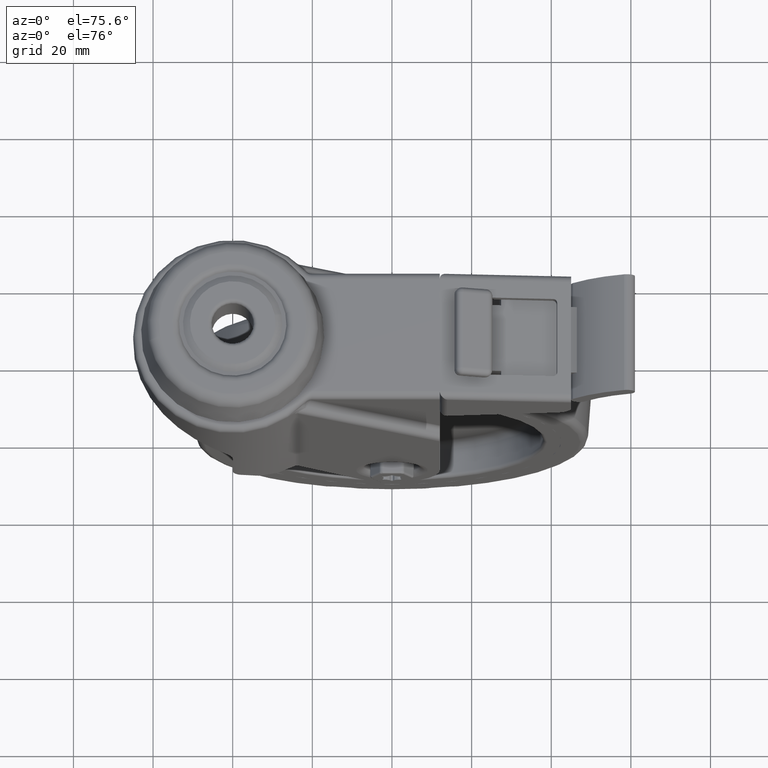
[diagram: clean part render]
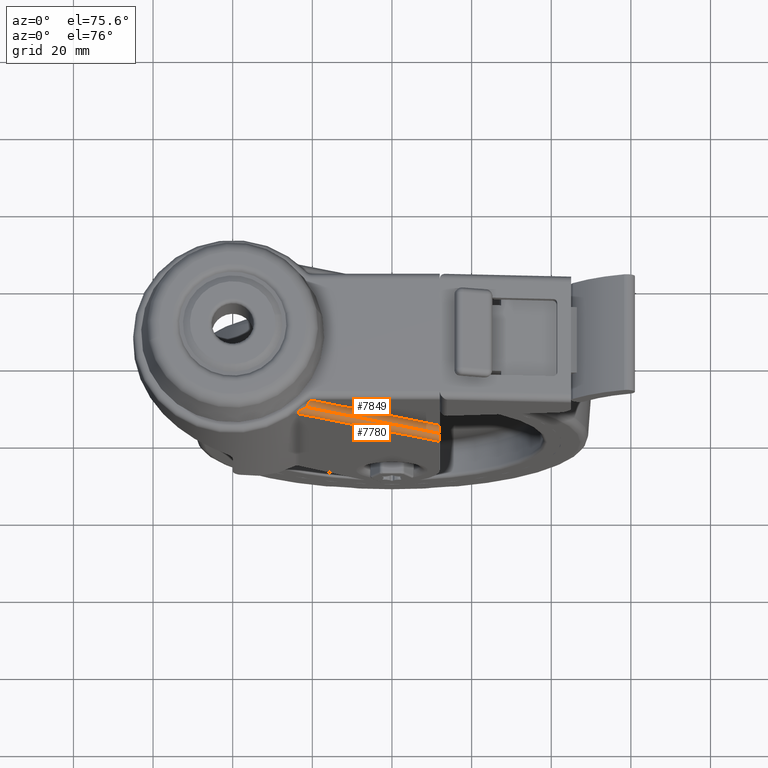
[diagram: same view with one multi-face feature highlighted, each face labeled with its STEP entity id]
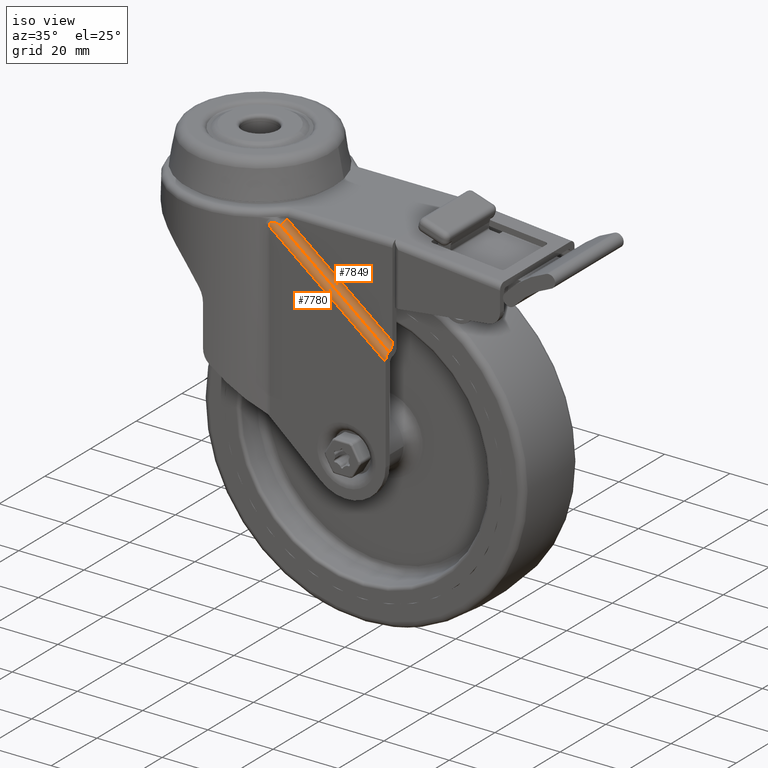
[diagram: same view with one multi-face feature highlighted, each face labeled with its STEP entity id]
A machine part, auxiliary view. The highlighted faces form ONE feature: a constant-radius fillet chain: 2 tangent blend faces with common blend radius 1.8 mm. The faces share edges in the B-rep.
A second angle (iso view) of the same feature is appended — it is thin or edge-on in the first view.
Their STEP definitions:
[1] entity #7780 (Cylinder):
#131=ELLIPSE('',#8442,2.29037622019586,1.8);
#179=B_SPLINE_CURVE_WITH_KNOTS('',3,(#12128,#12129,#12130,#12131,#12132,
#12133,#12134,#12135,#12136,#12137,#12138,#12139,#12140,#12141,#12142,#12143,
#12144,#12145,#12146,#12147,#12148,#12149,#12150,#12151,#12152,#12153,#12154,
#12155,#12156,#12157,#12158,#12159,#12160,#12161,#12162,#12163,#12164,#12165,
#12166,#12167,#12168,#12169,#12170,#12171,#12172,#12173,#12174,#12175,#12176,
#12177,#12178,#12179),.UNSPECIFIED.,.F.,.F.,(4,3,3,3,3,3,3,3,3,3,3,3,3,
3,3,3,3,4),(-0.00583113758674064,-0.00554187504604392,-0.00500354524939247,
-0.00484432968744607,-0.00466717416060475,-0.00460510353004133,-0.00446342672707553,
-0.00435530620499345,-0.00433189175282388,-0.00414801051078701,-0.00412291330652239,
-0.00400516918217474,-0.00394629712000091,-0.00388742505782709,-0.00374545007607357,
-0.00328935966431523,-0.00291556879337032,-0.00281466674011114),
 .UNSPECIFIED.);
#180=B_SPLINE_CURVE_WITH_KNOTS('',3,(#12186,#12187,#12188,#12189,#12190,
#12191,#12192,#12193,#12194,#12195,#12196,#12197,#12198,#12199,#12200,#12201),
 .UNSPECIFIED.,.F.,.F.,(4,3,3,3,3,4),(-0.00281466674011114,-0.00254177792242541,
-0.00194371252891355,-0.00118334688208495,-0.000986807899294569,-3.00972819849414E-16),
 .UNSPECIFIED.);
#603=CYLINDRICAL_SURFACE('',#8441,1.8);
#880=FACE_OUTER_BOUND('',#1363,.T.);
#1363=EDGE_LOOP('',(#5770,#5771,#5772,#5773,#5774));
#1939=LINE('',#12181,#2509);
#1940=LINE('',#12185,#2510);
#2509=VECTOR('',#9714,999.999999999999);
#2510=VECTOR('',#9717,1.8);
#3497=VERTEX_POINT('',#12126);
#3498=VERTEX_POINT('',#12127);
#3499=VERTEX_POINT('',#12180);
#3500=VERTEX_POINT('',#12182);
#3501=VERTEX_POINT('',#12184);
#4335=EDGE_CURVE('',#3497,#3498,#179,.T.);
#4336=EDGE_CURVE('',#3497,#3499,#1939,.T.);
#4337=EDGE_CURVE('',#3499,#3500,#131,.T.);
#4338=EDGE_CURVE('',#3501,#3500,#1940,.T.);
#4339=EDGE_CURVE('',#3498,#3501,#180,.T.);
#5770=ORIENTED_EDGE('',*,*,#4335,.F.);
#5771=ORIENTED_EDGE('',*,*,#4336,.T.);
#5772=ORIENTED_EDGE('',*,*,#4337,.T.);
#5773=ORIENTED_EDGE('',*,*,#4338,.F.);
#5774=ORIENTED_EDGE('',*,*,#4339,.F.);
#7780=ADVANCED_FACE('',(#880),#603,.T.);
#8441=AXIS2_PLACEMENT_3D('',#12125,#9712,#9713);
#8442=AXIS2_PLACEMENT_3D('',#12183,#9715,#9716);
#9712=DIRECTION('center_axis',(0.785897087180759,-2.61429921992068E-16,
-0.618357314471818));
#9713=DIRECTION('ref_axis',(0.437244650259325,-0.707106781186547,0.55571315966027));
#9714=DIRECTION('',(0.785897087180759,-3.30055061524995E-16,-0.618357314471818));
#9715=DIRECTION('center_axis',(-1.,4.25699012509646E-16,2.61162664890206E-33));
#9716=DIRECTION('ref_axis',(6.30659472253386E-32,1.42011888211901E-16,1.));
#9717=DIRECTION('',(0.785897087180759,0.,-0.618357314471818));
#12125=CARTESIAN_POINT('Origin',(30.2339896012534,-17.5,-27.6645057258586));
#12126=CARTESIAN_POINT('',(16.5236194582176,-19.3,-16.8769512224118));
#12127=CARTESIAN_POINT('',(17.001004420076,-18.7727918285475,-15.6330253374561));
#12128=CARTESIAN_POINT('Ctrl Pts',(16.5236194582177,-19.3,-16.8769512224116));
#12129=CARTESIAN_POINT('Ctrl Pts',(16.500190869552,-19.3,-16.8103067833569));
#12130=CARTESIAN_POINT('Ctrl Pts',(16.4791450692778,-19.2988030318616,-16.7441476050975));
#12131=CARTESIAN_POINT('Ctrl Pts',(16.4610779301551,-19.2962065374206,-16.6791234059825));
#12132=CARTESIAN_POINT('Ctrl Pts',(16.4274542217184,-19.2913743516799,-16.558110627063));
#12133=CARTESIAN_POINT('Ctrl Pts',(16.4041983958209,-19.2817490925898,-16.4414003380796));
#12134=CARTESIAN_POINT('Ctrl Pts',(16.3947021635348,-19.2658940809423,-16.331771937397));
#12135=CARTESIAN_POINT('Ctrl Pts',(16.3918935730217,-19.2612048279884,-16.2993484164837));
#12136=CARTESIAN_POINT('Ctrl Pts',(16.3903052403653,-19.2559626584604,-16.2675542713455));
#12137=CARTESIAN_POINT('Ctrl Pts',(16.390013945486,-19.2501521285544,-16.2365657972667));
#12138=CARTESIAN_POINT('Ctrl Pts',(16.3896898283132,-19.2436868843652,-16.2020856284671));
#12139=CARTESIAN_POINT('Ctrl Pts',(16.3909759375143,-19.2365208086031,-16.1686155633857));
#12140=CARTESIAN_POINT('Ctrl Pts',(16.3939803356084,-19.2286116802382,-16.1363181732104));
#12141=CARTESIAN_POINT('Ctrl Pts',(16.3950329975687,-19.2258405299751,-16.1250020183634));
#12142=CARTESIAN_POINT('Ctrl Pts',(16.3962940172094,-19.2229806607423,-16.1138352122145));
#12143=CARTESIAN_POINT('Ctrl Pts',(16.3977674306432,-19.2200289554492,-16.1028172908354));
#12144=CARTESIAN_POINT('Ctrl Pts',(16.4011305107802,-19.2132916601224,-16.0776687807888));
#12145=CARTESIAN_POINT('Ctrl Pts',(16.4056042293326,-19.206078641199,-16.0533142825128));
#12146=CARTESIAN_POINT('Ctrl Pts',(16.4112137542269,-19.1983870625255,-16.0298505258563));
#12147=CARTESIAN_POINT('Ctrl Pts',(16.4154946579987,-19.1925172413239,-16.0119441815106));
#12148=CARTESIAN_POINT('Ctrl Pts',(16.4204366995377,-19.1863688031529,-15.9945560944499));
#12149=CARTESIAN_POINT('Ctrl Pts',(16.4260401989677,-19.1799457107608,-15.977723998495));
#12150=CARTESIAN_POINT('Ctrl Pts',(16.4272536861656,-19.1785547334819,-15.9740788597363));
#12151=CARTESIAN_POINT('Ctrl Pts',(16.4284982380482,-19.1771507978792,-15.9704595188811));
#12152=CARTESIAN_POINT('Ctrl Pts',(16.4297739714688,-19.1757337913866,-15.9668658971467));
#12153=CARTESIAN_POINT('Ctrl Pts',(16.4397927173354,-19.1646055825372,-15.9386440270323));
#12154=CARTESIAN_POINT('Ctrl Pts',(16.4517955268569,-19.1526599001327,-15.9121372351394));
#12155=CARTESIAN_POINT('Ctrl Pts',(16.46562883944,-19.1399734015918,-15.8873860674883));
#12156=CARTESIAN_POINT('Ctrl Pts',(16.4675168921185,-19.1382418729065,-15.8840078810923));
#12157=CARTESIAN_POINT('Ctrl Pts',(16.4694391047341,-19.1364965178003,-15.8806624430637));
#12158=CARTESIAN_POINT('Ctrl Pts',(16.4713951426482,-19.1347375073183,-15.8773498993087));
#12159=CARTESIAN_POINT('Ctrl Pts',(16.480571940548,-19.1264850682524,-15.8618090223376));
#12160=CARTESIAN_POINT('Ctrl Pts',(16.490491377757,-19.117933417601,-15.8469934538812));
#12161=CARTESIAN_POINT('Ctrl Pts',(16.501085373163,-19.1090936275943,-15.8328796989773));
#12162=CARTESIAN_POINT('Ctrl Pts',(16.506382370866,-19.104673732591,-15.8258228215253));
#12163=CARTESIAN_POINT('Ctrl Pts',(16.5118602196695,-19.1001814601747,-15.8189503059195));
#12164=CARTESIAN_POINT('Ctrl Pts',(16.5175272914053,-19.0956179467973,-15.8122729834945));
#12165=CARTESIAN_POINT('Ctrl Pts',(16.523194363141,-19.0910544334199,-15.8055956610695));
#12166=CARTESIAN_POINT('Ctrl Pts',(16.5290505771571,-19.0864197591768,-15.7991136573314));
#12167=CARTESIAN_POINT('Ctrl Pts',(16.535089173457,-19.0817146848292,-15.7928256503856));
#12168=CARTESIAN_POINT('Ctrl Pts',(16.5496517616837,-19.0703679981331,-15.7776615871876));
#12169=CARTESIAN_POINT('Ctrl Pts',(16.565186914146,-19.0586473825086,-15.763640046727));
#12170=CARTESIAN_POINT('Ctrl Pts',(16.5816240247726,-19.0465961086695,-15.7508195700967));
#12171=CARTESIAN_POINT('Ctrl Pts',(16.6344277544242,-19.0078817494241,-15.7096341697325));
#12172=CARTESIAN_POINT('Ctrl Pts',(16.6969764195709,-18.9653067133344,-15.6798593293126));
#12173=CARTESIAN_POINT('Ctrl Pts',(16.7663945882641,-18.9201482942478,-15.6606948079225));
#12174=CARTESIAN_POINT('Ctrl Pts',(16.8232865488628,-18.8831385164369,-15.6449884414719));
#12175=CARTESIAN_POINT('Ctrl Pts',(16.8844497505521,-18.8446012348617,-15.6364122437495));
#12176=CARTESIAN_POINT('Ctrl Pts',(16.9484762744624,-18.8050647789556,-15.6338286021489));
#12177=CARTESIAN_POINT('Ctrl Pts',(16.9657597562908,-18.7943922080353,-15.6331311673996));
#12178=CARTESIAN_POINT('Ctrl Pts',(16.9832765280451,-18.7836316804859,-15.6328694858292));
#12179=CARTESIAN_POINT('Ctrl Pts',(17.001004420076,-18.7727918285475,-15.6330253374561));
#12180=CARTESIAN_POINT('',(52.,-19.3,-44.7903762201959));
#12181=CARTESIAN_POINT('',(30.2339896012534,-19.3,-27.6645057258586));
#12182=CARTESIAN_POINT('',(52.,-17.8,-42.5320348115304));
#12183=CARTESIAN_POINT('Origin',(52.,-17.5,-44.7903762201959));
#12184=CARTESIAN_POINT('',(18.6668865046921,-17.7999999999995,-16.3049691051497));
#12185=CARTESIAN_POINT('',(31.331464963317,-17.8,-26.2696767651385));
#12186=CARTESIAN_POINT('Ctrl Pts',(17.001004420076,-18.7727918285475,-15.6330253374561));
#12187=CARTESIAN_POINT('Ctrl Pts',(17.0489493660918,-18.74347553335,-15.6334468369679));
#12188=CARTESIAN_POINT('Ctrl Pts',(17.0984385045344,-18.7135790375066,-15.6369222904216));
#12189=CARTESIAN_POINT('Ctrl Pts',(17.1490332885208,-18.6832730988808,-15.6430912809205));
#12190=CARTESIAN_POINT('Ctrl Pts',(17.2599172362439,-18.6168543527273,-15.6566112916033));
#12191=CARTESIAN_POINT('Ctrl Pts',(17.3758804304114,-18.5485898563478,-15.6830155691955));
#12192=CARTESIAN_POINT('Ctrl Pts',(17.4931711511102,-18.4800296988184,-15.718675177699));
#12193=CARTESIAN_POINT('Ctrl Pts',(17.6422916915705,-18.3928639990603,-15.7640119277929));
#12194=CARTESIAN_POINT('Ctrl Pts',(17.7953554115887,-18.3041593217532,-15.8247499298267));
#12195=CARTESIAN_POINT('Ctrl Pts',(17.9494251894681,-18.2150000483951,-15.8968699758521));
#12196=CARTESIAN_POINT('Ctrl Pts',(17.9892490788685,-18.1919541980661,-15.9155115340863));
#12197=CARTESIAN_POINT('Ctrl Pts',(18.0291427624955,-18.1688755063592,-15.9349182808825));
#12198=CARTESIAN_POINT('Ctrl Pts',(18.0690630243582,-18.1457865864837,-15.9550362258134));
#12199=CARTESIAN_POINT('Ctrl Pts',(18.2694997478457,-18.029858803629,-16.0560469601399));
#12200=CARTESIAN_POINT('Ctrl Pts',(18.4706041264447,-17.9136512926577,-16.1749748969402));
#12201=CARTESIAN_POINT('Ctrl Pts',(18.666886504692,-17.7999999999991,-16.3049691051495));
[2] entity #7849 (Cylinder):
#142=ELLIPSE('',#8573,2.29037622019585,1.8);
#633=CYLINDRICAL_SURFACE('',#8586,1.8);
#949=FACE_OUTER_BOUND('',#1443,.T.);
#1443=EDGE_LOOP('',(#6106,#6107,#6108,#6109));
#1940=LINE('',#12185,#2510);
#2007=LINE('',#13829,#2577);
#2510=VECTOR('',#9717,1.8);
#2577=VECTOR('',#10064,1.8);
#3050=CIRCLE('',#8585,1.8);
#3500=VERTEX_POINT('',#12182);
#3501=VERTEX_POINT('',#12184);
#3517=VERTEX_POINT('',#12309);
#3602=VERTEX_POINT('',#13504);
#4338=EDGE_CURVE('',#3501,#3500,#1940,.T.);
#4496=EDGE_CURVE('',#3500,#3602,#142,.T.);
#4501=EDGE_CURVE('',#3602,#3517,#2007,.T.);
#4503=EDGE_CURVE('',#3501,#3517,#3050,.T.);
#6106=ORIENTED_EDGE('',*,*,#4503,.F.);
#6107=ORIENTED_EDGE('',*,*,#4338,.T.);
#6108=ORIENTED_EDGE('',*,*,#4496,.T.);
#6109=ORIENTED_EDGE('',*,*,#4501,.T.);
#7849=ADVANCED_FACE('',(#949),#633,.F.);
#8573=AXIS2_PLACEMENT_3D('',#13506,#10043,#10044);
#8585=AXIS2_PLACEMENT_3D('',#14120,#10069,#10070);
#8586=AXIS2_PLACEMENT_3D('',#14121,#10071,#10072);
#9717=DIRECTION('',(0.785897087180759,0.,-0.618357314471818));
#10043=DIRECTION('center_axis',(1.,-4.25699012509646E-16,0.));
#10044=DIRECTION('ref_axis',(0.,0.,1.));
#10064=DIRECTION('',(-0.785897087180759,0.,0.618357314471818));
#10069=DIRECTION('center_axis',(0.785897087180759,0.,-0.618357314471818));
#10070=DIRECTION('ref_axis',(0.,-1.,0.));
#10071=DIRECTION('center_axis',(-0.785897087180759,0.,0.618357314471818));
#10072=DIRECTION('ref_axis',(0.,-1.,0.));
#12182=CARTESIAN_POINT('',(52.,-17.8,-42.5320348115304));
#12184=CARTESIAN_POINT('',(18.6668865046921,-17.7999999999995,-16.3049691051497));
#12185=CARTESIAN_POINT('',(31.331464963317,-17.8,-26.2696767651385));
#12309=CARTESIAN_POINT('',(19.764361866754,-16.3,-14.9101401444284));
#13504=CARTESIAN_POINT('',(52.,-16.3,-40.2736934028649));
#13506=CARTESIAN_POINT('Origin',(52.,-18.1,-40.2736934028649));
#13829=CARTESIAN_POINT('',(32.4289403253805,-16.3,-24.8748478044184));
#14120=CARTESIAN_POINT('Origin',(19.764361866754,-18.1,-14.9101401444284));
#14121=CARTESIAN_POINT('Origin',(32.4289403253805,-18.1,-24.8748478044184));